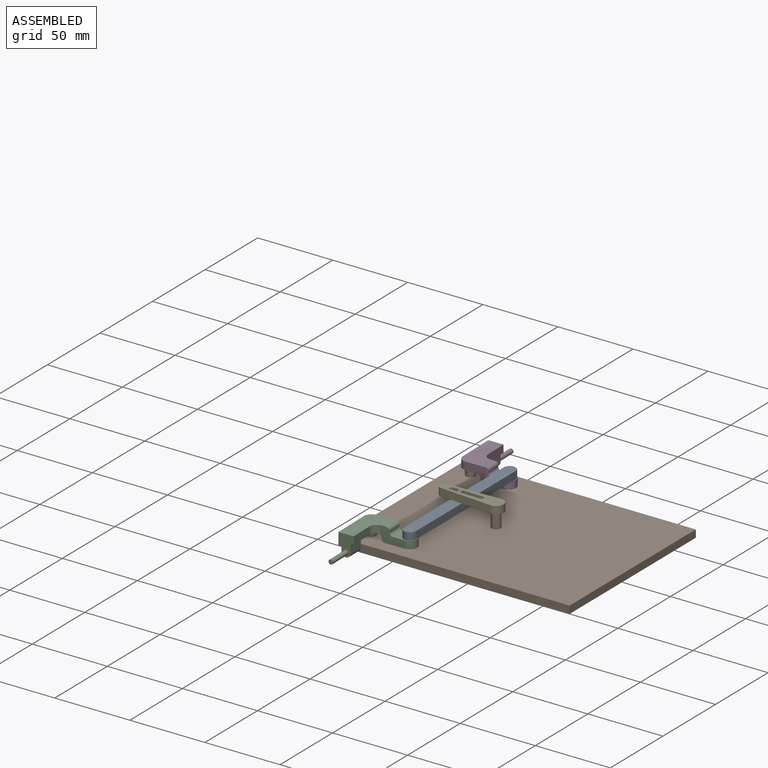
[diagram: assembled view]
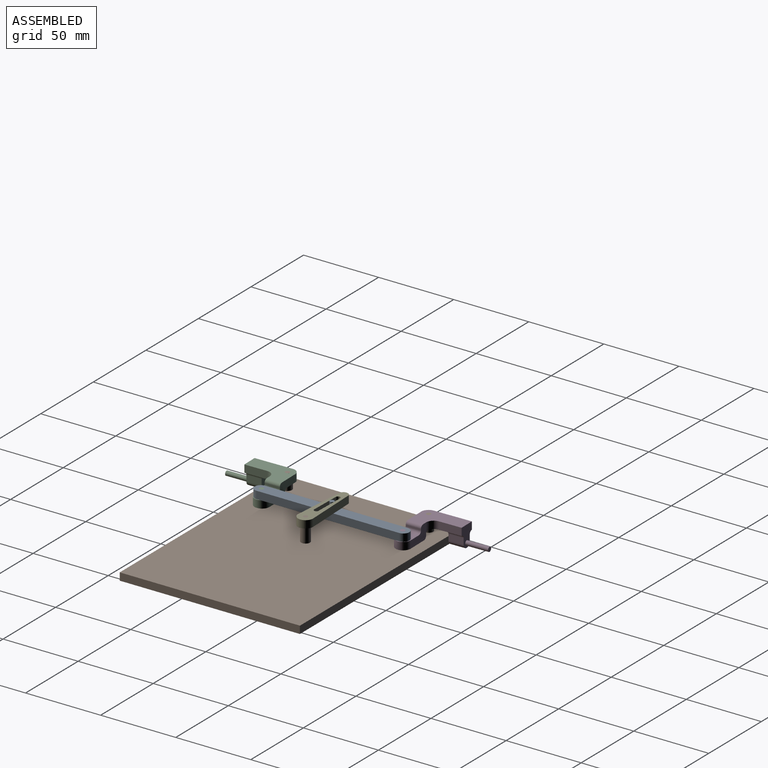
[diagram: assembled view, second angle]
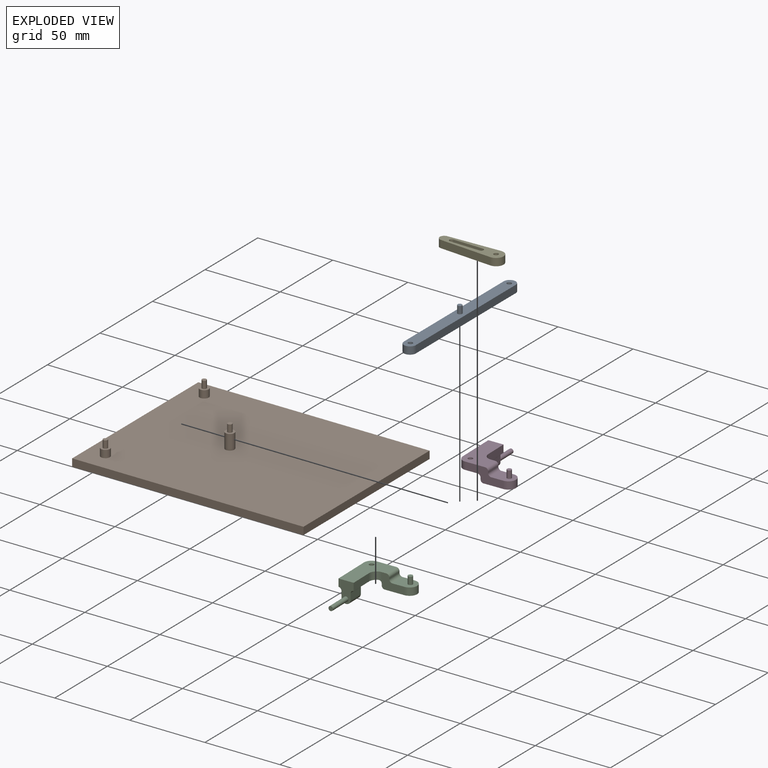
[diagram: exploded view]
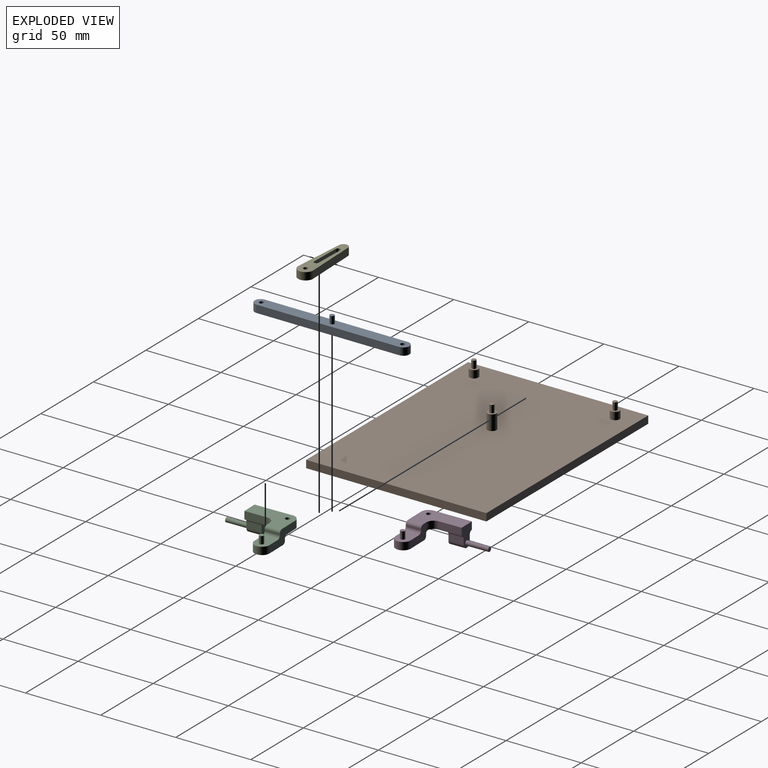
[diagram: exploded view, second angle]
ASSEMBLY  parts=5 mates=5
PART A: 10 faces, bbox 8x103x10 mm
  f0: plane 95x5mm, normal (-1,0,0), area 475mm2, adj f4,f5,f8,f9
  f1: cylinder r=1.5mm len=5mm, axis (0,0,-1), area 47.1mm2, adj f4,f5
  f2: cylinder r=1.5mm len=5mm, axis (0,0,-1), area 47.1mm2, adj f4,f5
  f3: plane 95x5mm, normal (1,0,0), area 475mm2, adj f4,f5,f8,f9
  f4: plane 103x8mm, normal (0,0,1), area 789.1mm2, adj f0,f1,f2,f3,f6,f8,f9
  f5: plane 103x8mm, normal (0,0,-1), area 796.1mm2, adj f0,f1,f2,f3,f8,f9
  f6: cylinder r=1.5mm len=5mm, axis (0,0,-1), area 47.1mm2, adj f4,f7
  f7: plane 3x3mm, normal (0,0,1), area 7.1mm2, adj f6
  f8: cylinder r=4mm len=8mm, axis (0,0,-1), area 62.8mm2, adj f0,f3,f4,f5
  f9: cylinder r=4mm len=8mm, axis (0,0,1), area 62.8mm2, adj f0,f3,f4,f5
PART B: 18 faces, bbox 154x120x20 mm
  f0: cylinder r=3mm len=10mm, axis (0,0,-1), area 188.5mm2, adj f7,f16
  f1: cylinder r=3mm len=6mm, axis (0,0,-1), area 94.2mm2, adj f7,f12
  f2: cylinder r=3mm len=6mm, axis (0,0,-1), area 94.2mm2, adj f7,f10
  f3: plane 154.02x5mm, normal (0,1,0), area 770.1mm2, adj f4,f6,f7,f8
  f4: plane 120x5mm, normal (-1,0,0), area 600mm2, adj f3,f5,f7,f8
  f5: plane 154.02x5mm, normal (0,-1,0), area 770.1mm2, adj f4,f6,f7,f8
  f6: plane 120x5mm, normal (1,0,0), area 600mm2, adj f3,f5,f7,f8
  f7: plane 154.02x120mm, normal (0,0,1), area 18397.7mm2, adj f0,f1,f2,f3,f4,f5,f6
  f8: plane 154.02x120mm, normal (0,0,-1), area 18482.5mm2, adj f3,f4,f5,f6
  f9: cylinder r=1.5mm len=5mm, axis (0,0,1), area 47.1mm2, adj f10,f13
  f10: plane 6x6mm, normal (0,0,1), area 21.2mm2, adj f2,f9
  f11: cylinder r=1.5mm len=5mm, axis (0,0,1), area 47.1mm2, adj f12,f14
  f12: plane 6x6mm, normal (0,0,1), area 21.2mm2, adj f1,f11
  f13: plane 3x3mm, normal (0,0,1), area 7.1mm2, adj f9
  f14: plane 3x3mm, normal (0,0,1), area 7.1mm2, adj f11
  f15: cylinder r=1.5mm len=5mm, axis (0,0,1), area 47.1mm2, adj f16,f17
  f16: plane 6x6mm, normal (0,0,1), area 21.2mm2, adj f0,f15
  f17: plane 3x3mm, normal (0,0,1), area 7.1mm2, adj f15
PART C: 30 faces, bbox 35x45x14 mm
  f0: plane 18x13mm, normal (0,0,-1), area 202.7mm2, adj f1,f2,f5,f7,f15,f16,f17,f27
  f1: plane 25x5mm, normal (-1,0,0), area 125mm2, adj f0,f6,f8,f16,f25
  f2: plane 25x10mm, normal (0,1,0), area 150mm2, adj f0,f3,f8,f9,f10,f11,f14,f16
  f3: plane 10x1mm, normal (1,0,0), area 10mm2, adj f2,f4,f19,f20
  f4: plane 15x10mm, normal (0,-1,0), area 99.1mm2, adj f3,f8,f9,f10,f11,f14,f15,f18
  f5: plane 15x5mm, normal (1,0,0), area 75mm2, adj f0,f6,f8,f15,f24
  f6: plane 14x10mm, normal (0,-1,0), area 94.8mm2, adj f1,f5,f8,f21,f22,f24,f25,f26
  f7: cylinder r=1.5mm len=5mm, axis (0,0,-1), area 47.1mm2, adj f0,f8
  f8: plane 30x18mm, normal (0,0,1), area 372.9mm2, adj f1,f2,f4,f5,f6,f7,f15,f16
  f9: plane 13x10mm, normal (0,0,1), area 112.2mm2, adj f2,f4,f12,f14,f19
  f10: plane 10x1mm, normal (-1,0,0), area 10mm2, adj f2,f4,f17,f18
  f11: plane 18x10mm, normal (0,0,-1), area 169.3mm2, adj f2,f4,f14,f18
  f12: cylinder r=1.5mm len=5mm, axis (0,0,-1), area 47.1mm2, adj f9,f13
  f13: plane 3x3mm, normal (0,0,1), area 7.1mm2, adj f12
  f14: cylinder r=5mm len=10mm, axis (0,0,1), area 78.5mm2, adj f2,f4,f9,f11
  f15: cylinder r=5mm len=7mm, axis (0,0,-1), area 40.1mm2, adj f0,f4,f5,f8,f17
  f16: cylinder r=5mm len=5mm, axis (0,0,1), area 39.3mm2, adj f0,f1,f2,f8
  f17: cylinder r=2mm len=10.42mm, axis (0,1,0), area 31.7mm2, adj f0,f2,f10,f15
  f18: cylinder r=2mm len=10mm, axis (0,1,0), area 31.4mm2, adj f2,f4,f10,f11
  f19: cylinder r=2mm len=10mm, axis (0,1,0), area 31.4mm2, adj f2,f3,f4,f9
  f20: cylinder r=2mm len=10mm, axis (0,1,0), area 31.4mm2, adj f2,f3,f4,f8
  f21: plane 10x4mm, normal (1,0,0), area 40mm2, adj f6,f23,f24,f26
  f22: plane 10x4mm, normal (-1,0,0), area 40mm2, adj f6,f23,f25,f26
  f23: plane 7x6mm, normal (0,1,0), area 38.1mm2, adj f21,f22,f26,f27
  f24: cylinder r=2mm len=12mm, axis (0,-1,0), area 33.7mm2, adj f5,f6,f21,f27
  f25: cylinder r=2mm len=12mm, axis (0,1,0), area 33.7mm2, adj f1,f6,f22,f27
  f26: cylinder r=3mm len=10mm, axis (0,1,0), area 94.2mm2, adj f6,f21,f22,f23
  f27: cylinder r=2mm len=10mm, axis (-1,0,0), area 23.4mm2, adj f0,f23,f24,f25
  f28: cylinder r=1.5mm len=15mm, axis (0,1,0), area 141.4mm2, adj f6,f29
  f29: plane 3x3mm, normal (0,-1,0), area 7.1mm2, adj f28
PART D: 30 faces, bbox 35x45x14 mm
  f0: plane 18x13mm, normal (0,0,-1), area 202.7mm2, adj f1,f2,f5,f7,f15,f16,f17,f27
  f1: plane 25x5mm, normal (-1,0,0), area 125mm2, adj f0,f6,f8,f16,f25
  f2: plane 25x10mm, normal (0,-1,0), area 150mm2, adj f0,f3,f8,f9,f10,f11,f14,f16
  f3: plane 10x1mm, normal (1,0,0), area 10mm2, adj f2,f4,f19,f20
  f4: plane 15x10mm, normal (0,1,0), area 99.1mm2, adj f3,f8,f9,f10,f11,f14,f15,f18
  f5: plane 15x5mm, normal (1,0,0), area 75mm2, adj f0,f6,f8,f15,f24
  f6: plane 14x10mm, normal (0,1,0), area 94.8mm2, adj f1,f5,f8,f21,f22,f24,f25,f26
  f7: cylinder r=1.5mm len=5mm, axis (0,0,-1), area 47.1mm2, adj f0,f8
  f8: plane 30x18mm, normal (0,0,1), area 372.9mm2, adj f1,f2,f4,f5,f6,f7,f15,f16
  f9: plane 13x10mm, normal (0,0,1), area 112.2mm2, adj f2,f4,f12,f14,f19
  f10: plane 10x1mm, normal (-1,0,0), area 10mm2, adj f2,f4,f17,f18
  f11: plane 18x10mm, normal (0,0,-1), area 169.3mm2, adj f2,f4,f14,f18
  f12: cylinder r=1.5mm len=5mm, axis (0,0,-1), area 47.1mm2, adj f9,f13
  f13: plane 3x3mm, normal (0,0,1), area 7.1mm2, adj f12
  f14: cylinder r=5mm len=10mm, axis (0,0,1), area 78.5mm2, adj f2,f4,f9,f11
  f15: cylinder r=5mm len=7mm, axis (0,0,-1), area 40.1mm2, adj f0,f4,f5,f8,f17
  f16: cylinder r=5mm len=5mm, axis (0,0,1), area 39.3mm2, adj f0,f1,f2,f8
  f17: cylinder r=2mm len=10.42mm, axis (0,-1,0), area 31.7mm2, adj f0,f2,f10,f15
  f18: cylinder r=2mm len=10mm, axis (0,-1,0), area 31.4mm2, adj f2,f4,f10,f11
  f19: cylinder r=2mm len=10mm, axis (0,-1,0), area 31.4mm2, adj f2,f3,f4,f9
  f20: cylinder r=2mm len=10mm, axis (0,-1,0), area 31.4mm2, adj f2,f3,f4,f8
  f21: plane 10x4mm, normal (1,0,0), area 40mm2, adj f6,f23,f24,f26
  f22: plane 10x4mm, normal (-1,0,0), area 40mm2, adj f6,f23,f25,f26
  f23: plane 7x6mm, normal (0,-1,0), area 38.1mm2, adj f21,f22,f26,f27
  f24: cylinder r=2mm len=12mm, axis (0,1,0), area 33.7mm2, adj f5,f6,f21,f27
  f25: cylinder r=2mm len=12mm, axis (0,-1,0), area 33.7mm2, adj f1,f6,f22,f27
  f26: cylinder r=3mm len=10mm, axis (0,-1,0), area 94.2mm2, adj f6,f21,f22,f23
  f27: cylinder r=2mm len=10mm, axis (-1,0,0), area 23.4mm2, adj f0,f23,f24,f25
  f28: cylinder r=1.5mm len=15mm, axis (0,-1,0), area 141.4mm2, adj f6,f29
  f29: plane 3x3mm, normal (0,1,0), area 7.1mm2, adj f28
PART E: 11 faces, bbox 43x10x5 mm
  f0: plane 20x5mm, normal (0,1,0), area 100mm2, adj f1,f6,f9,f10
  f1: cylinder r=1.5mm len=5mm, axis (0,0,-1), area 23.6mm2, adj f0,f2,f9,f10
  f2: plane 20x5mm, normal (0,-1,0), area 100mm2, adj f1,f6,f9,f10
  f3: cylinder r=3mm len=6mm, axis (0,0,-1), area 47.1mm2, adj f4,f7,f9,f10
  f4: plane 35x5mm, normal (-0.06,-1,0), area 175.3mm2, adj f3,f5,f9,f10
  f5: cylinder r=5mm len=10mm, axis (0,0,-1), area 78.5mm2, adj f4,f7,f9,f10
  f6: cylinder r=1.5mm len=5mm, axis (0,0,-1), area 23.6mm2, adj f0,f2,f9,f10
  f7: plane 35x5mm, normal (-0.06,1,0), area 175.3mm2, adj f3,f5,f9,f10
  f8: cylinder r=1.5mm len=5mm, axis (0,0,-1), area 47.1mm2, adj f9,f10
  f9: plane 43x10mm, normal (0,0,1), area 259.3mm2, adj f0,f1,f2,f3,f4,f5,f6,f7
  f10: plane 43x10mm, normal (0,0,-1), area 259.3mm2, adj f0,f1,f2,f3,f4,f5,f6,f7
PLACE A t=(1.62,-81.81,33.13)mm
PLACE B t=(-73.94,-72.15,23.13)mm fixed
PLACE C rot(axis=(0,0,1),1.2deg) t=(32.78,-55.85,33.13)mm
PLACE D rot(axis=(0,0,1),1.2deg) t=(34,-21.84,33.13)mm
PLACE E rot(axis=(0,0,-1),1.2deg) t=(-123.66,78.92,38.13)mm
MATE revolute A.f2 <-> D.f12  axis (0,0,1) through (-110.17,4,38.13)mm
MATE revolute A.f1 <-> C.f12  axis (0,0,1) through (-110.17,-90,38.13)mm
MATE revolute C.f7 <-> B.f2  axis (0,0,-1) through (-135.66,-90.52,38.13)mm
MATE revolute D.f7 <-> B.f1  axis (0,0,-1) through (-135.66,3.48,38.13)mm
MATE revolute E.f5 <-> B.f0  axis (0,0,1) through (-85.66,-43.53,43.13)mm
